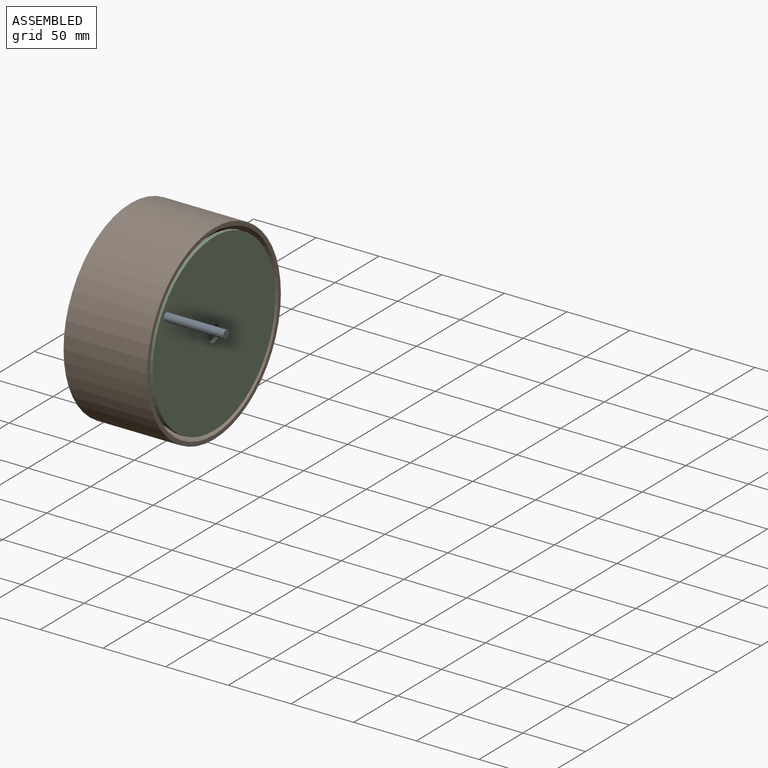
[diagram: assembled view]
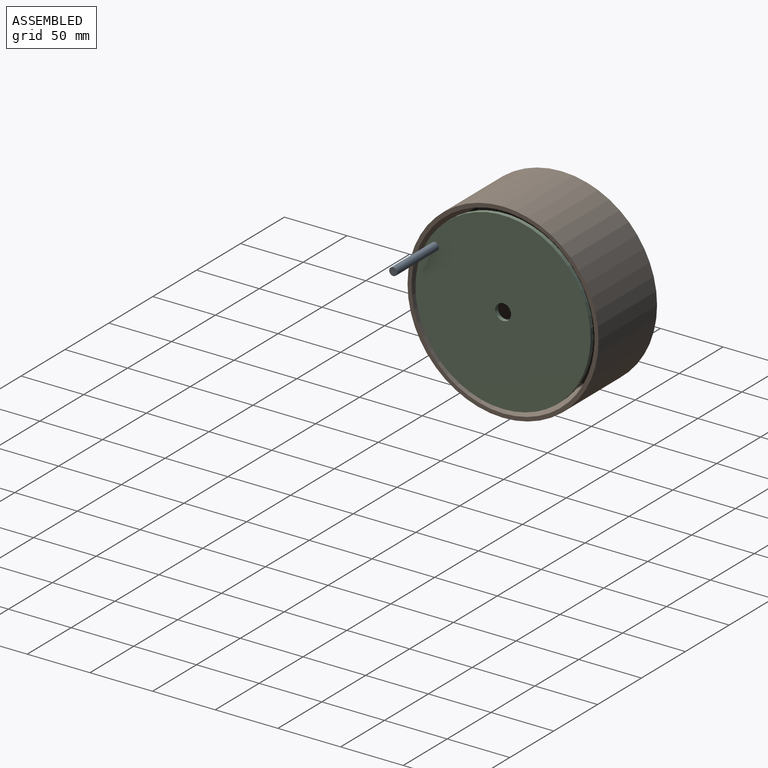
[diagram: assembled view, second angle]
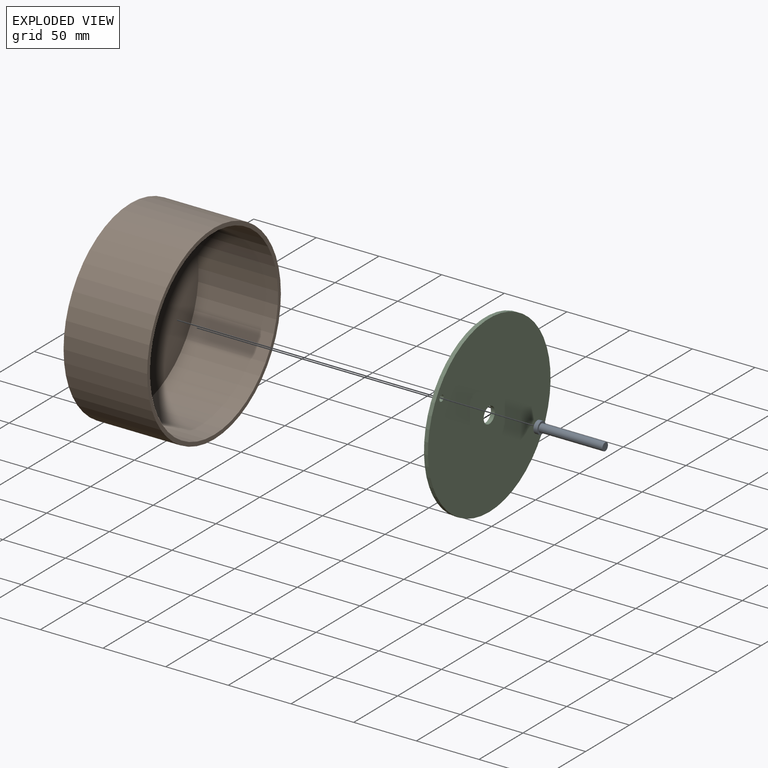
[diagram: exploded view]
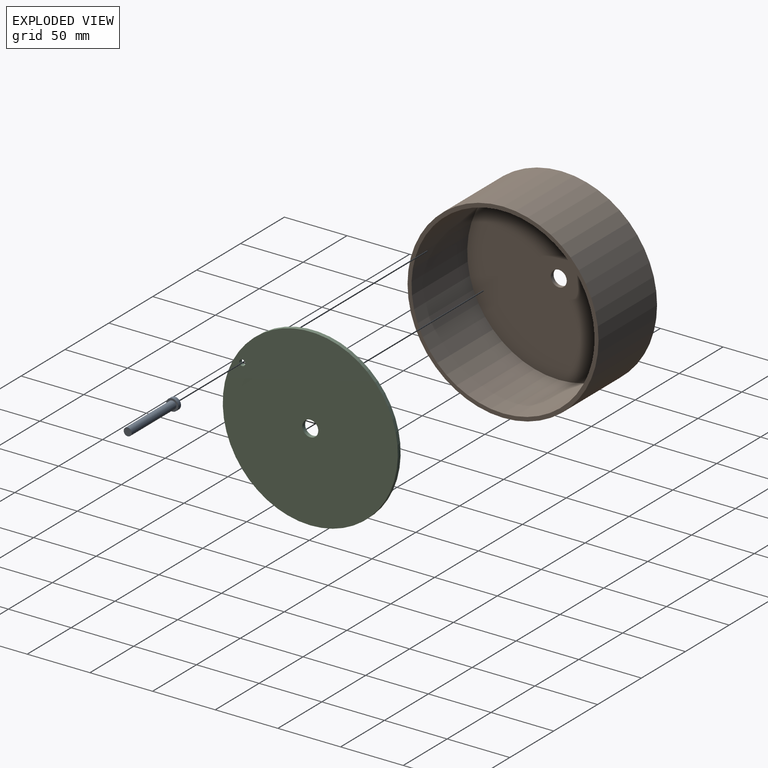
[diagram: exploded view, second angle]
ASSEMBLY  parts=3 mates=2
PART A: 5 faces, bbox 54x9.5x9.5 mm
  f0: cylinder r=3.17mm len=50.8mm, axis (-1,0,0), area 1013.4mm2, adj f1,f4
  f1: plane 6.35x6.35mm, normal (1,0,0), area 31.7mm2, adj f0
  f2: cylinder r=4.76mm len=9.53mm, axis (1,0,0), area 95mm2, adj f3,f4
  f3: plane 9.53x9.53mm, normal (-1,0,0), area 71.3mm2, adj f2
  f4: plane 9.53x9.53mm, normal (1,0,0), area 39.6mm2, adj f0,f2
PART B: 6 faces, bbox 66.7x152.4x152.4 mm
  f0: plane 146.05x146.05mm, normal (1,0,0), area 16626.3mm2, adj f1,f4
  f1: cylinder r=6.35mm len=12.7mm, axis (-1,0,0), area 126.7mm2, adj f0,f3
  f2: cylinder r=76.2mm len=152.4mm, axis (-1,0,0), area 31922.6mm2, adj f3,f5
  f3: plane 152.4x152.4mm, normal (-1,0,0), area 18114.8mm2, adj f1,f2
  f4: cylinder r=73.03mm len=146.05mm, axis (-1,0,0), area 29135.7mm2, adj f0,f5
  f5: plane 152.4x152.4mm, normal (1,0,0), area 1488.5mm2, adj f2,f4
PART C: 5 faces, bbox 3.2x139.7x139.7 mm
  f0: cylinder r=2.38mm len=4.76mm, axis (-1,0,0), area 47.5mm2, adj f3,f4
  f1: cylinder r=6.35mm len=12.7mm, axis (-1,0,0), area 126.7mm2, adj f3,f4
  f2: cylinder r=69.85mm len=139.7mm, axis (-1,0,0), area 1393.4mm2, adj f3,f4
  f3: plane 139.7x139.7mm, normal (1,0,0), area 15183.4mm2, adj f0,f1,f2
  f4: plane 139.7x139.7mm, normal (-1,0,0), area 15183.4mm2, adj f0,f1,f2
PLACE A rot(axis=(1,0,0),58.8deg) t=(-124.44,-54.67,32.88)mm
PLACE B t=(-187.94,-0.35,-0.01)mm fixed
PLACE C rot(axis=(1,0,0),58.8deg) t=(-124.44,-0.35,-0.01)mm
MATE revolute C.f1 <-> B.f4  axis (-1,0,0) through (-121.26,-0.35,-0.01)mm
MATE fastened C.f0 <-> A.f2  axis (-1,0,0) through (-124.44,-54.67,32.88)mm
